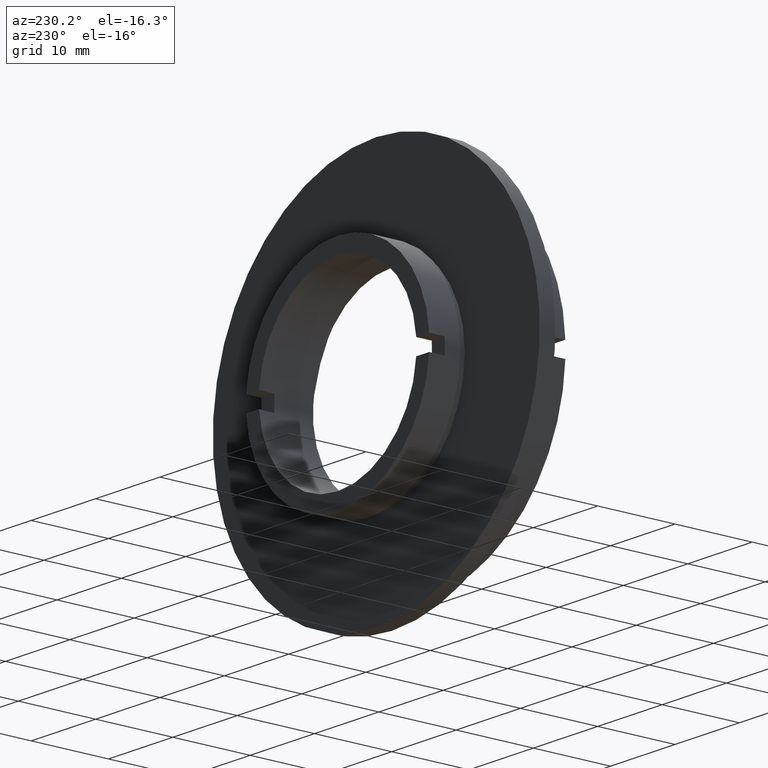
[diagram: clean part render]
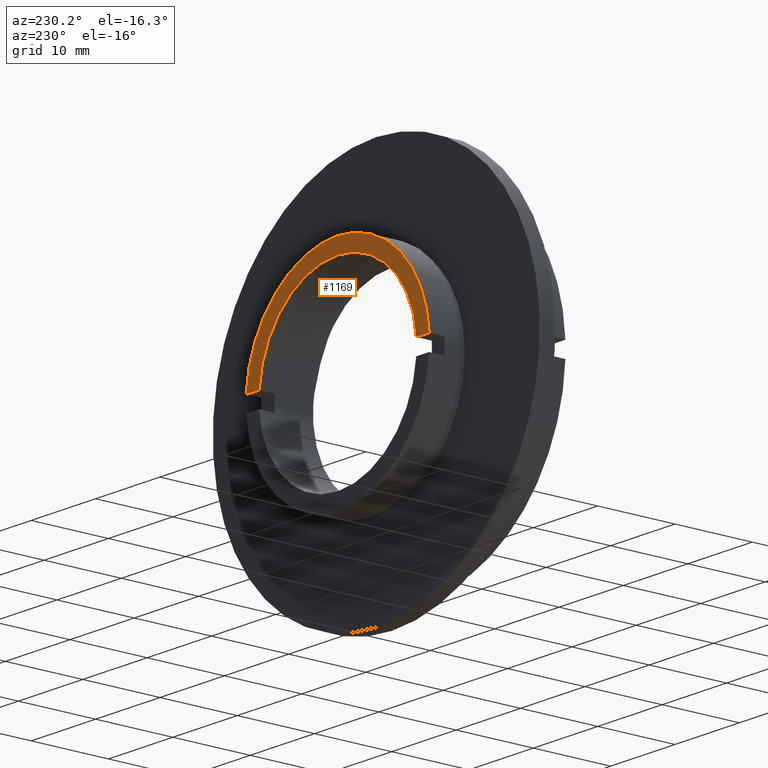
[diagram: same view with one face highlighted and labeled with its STEP entity id]
A machine part, auxiliary view. The second image highlights one B-rep face of the part: STEP entity #1169.
In plain terms, the highlighted planar face has unit normal (-0, 1, 0).
Its self-contained STEP definition (entity closure, byte-faithful):
#17 = EDGE_CURVE ( 'NONE', #1176, #213, #1238, .T. ) ;
#60 = VERTEX_POINT ( 'NONE', #689 ) ;
#90 = DIRECTION ( 'NONE',  ( -0.0000000000000000000, 1.000000000000000000, -0.0000000000000000000 ) ) ;
#113 = DIRECTION ( 'NONE',  ( 0.0000000000000000000, 0.0000000000000000000, 1.000000000000000000 ) ) ;
#118 = AXIS2_PLACEMENT_3D ( 'NONE', #519, #1134, #607 ) ;
#130 = CIRCLE ( 'NONE', #755, 12.24999999999999800 ) ;
#141 = AXIS2_PLACEMENT_3D ( 'NONE', #1140, #829, #1124 ) ;
#194 = VECTOR ( 'NONE', #1289, 1000.000000000000000 ) ;
#200 = VERTEX_POINT ( 'NONE', #278 ) ;
#213 = VERTEX_POINT ( 'NONE', #310 ) ;
#220 = ORIENTED_EDGE ( 'NONE', *, *, #443, .F. ) ;
#224 = EDGE_CURVE ( 'NONE', #200, #1009, #1125, .T. ) ;
#242 = CARTESIAN_POINT ( 'NONE',  ( 0.0000000000000000000, 12.00000000000000000, 0.0000000000000000000 ) ) ;
#278 = CARTESIAN_POINT ( 'NONE',  ( -12.20911544707477800, 12.00000000000000000, 1.000000000000001600 ) ) ;
#285 = CARTESIAN_POINT ( 'NONE',  ( 0.0000000000000000000, 12.00000000000000000, 12.24999999999999800 ) ) ;
#288 = DIRECTION ( 'NONE',  ( 1.000000000000000000, 0.0000000000000000000, 0.0000000000000000000 ) ) ;
#310 = CARTESIAN_POINT ( 'NONE',  ( 14.21486897582949800, 12.00000000000000000, 1.000000000000001600 ) ) ;
#324 = ORIENTED_EDGE ( 'NONE', *, *, #1278, .T. ) ;
#337 = EDGE_LOOP ( 'NONE', ( #957, #324, #385, #1116, #220, #850 ) ) ;
#385 = ORIENTED_EDGE ( 'NONE', *, *, #717, .T. ) ;
#443 = EDGE_CURVE ( 'NONE', #1009, #1176, #130, .T. ) ;
#486 = CARTESIAN_POINT ( 'NONE',  ( -12.24999999999999800, 12.00000000000000000, 1.000000000000001600 ) ) ;
#504 = DIRECTION ( 'NONE',  ( -0.0000000000000000000, 1.000000000000000000, -0.0000000000000000000 ) ) ;
#519 = CARTESIAN_POINT ( 'NONE',  ( -12.24999999999999800, 12.00000000000000000, 0.0000000000000000000 ) ) ;
#557 = LINE ( 'NONE', #486, #961 ) ;
#558 = DIRECTION ( 'NONE',  ( 0.0000000000000000000, 0.0000000000000000000, 1.000000000000000000 ) ) ;
#590 = AXIS2_PLACEMENT_3D ( 'NONE', #242, #504, #113 ) ;
#605 = CARTESIAN_POINT ( 'NONE',  ( 0.0000000000000000000, 12.00000000000000000, 0.0000000000000000000 ) ) ;
#607 = DIRECTION ( 'NONE',  ( 0.0000000000000000000, 0.0000000000000000000, 1.000000000000000000 ) ) ;
#653 = AXIS2_PLACEMENT_3D ( 'NONE', #1336, #1265, #558 ) ;
#660 = FACE_OUTER_BOUND ( 'NONE', #337, .T. ) ;
#689 = CARTESIAN_POINT ( 'NONE',  ( 0.0000000000000000000, 12.00000000000000000, 14.24999999999999800 ) ) ;
#711 = PLANE ( 'NONE',  #118 ) ;
#717 = EDGE_CURVE ( 'NONE', #60, #213, #1338, .T. ) ;
#733 = VERTEX_POINT ( 'NONE', #1118 ) ;
#734 = CARTESIAN_POINT ( 'NONE',  ( 12.20911544707477800, 12.00000000000000000, 1.000000000000001600 ) ) ;
#755 = AXIS2_PLACEMENT_3D ( 'NONE', #605, #90, #1323 ) ;
#773 = CARTESIAN_POINT ( 'NONE',  ( -12.24999999999999800, 12.00000000000000000, 1.000000000000001600 ) ) ;
#829 = DIRECTION ( 'NONE',  ( -0.0000000000000000000, 1.000000000000000000, -0.0000000000000000000 ) ) ;
#850 = ORIENTED_EDGE ( 'NONE', *, *, #224, .F. ) ;
#930 = EDGE_CURVE ( 'NONE', #733, #200, #557, .T. ) ;
#957 = ORIENTED_EDGE ( 'NONE', *, *, #930, .F. ) ;
#961 = VECTOR ( 'NONE', #288, 1000.000000000000000 ) ;
#965 = CIRCLE ( 'NONE', #653, 14.24999999999999800 ) ;
#1009 = VERTEX_POINT ( 'NONE', #285 ) ;
#1116 = ORIENTED_EDGE ( 'NONE', *, *, #17, .F. ) ;
#1118 = CARTESIAN_POINT ( 'NONE',  ( -14.21486897582949800, 12.00000000000000000, 1.000000000000001600 ) ) ;
#1124 = DIRECTION ( 'NONE',  ( 0.0000000000000000000, 0.0000000000000000000, 1.000000000000000000 ) ) ;
#1125 = CIRCLE ( 'NONE', #141, 12.24999999999999800 ) ;
#1134 = DIRECTION ( 'NONE',  ( -0.0000000000000000000, 1.000000000000000000, 0.0000000000000000000 ) ) ;
#1140 = CARTESIAN_POINT ( 'NONE',  ( 0.0000000000000000000, 12.00000000000000000, 0.0000000000000000000 ) ) ;
#1169 = ADVANCED_FACE ( 'NONE', ( #660 ), #711, .T. ) ;
#1176 = VERTEX_POINT ( 'NONE', #734 ) ;
#1238 = LINE ( 'NONE', #773, #194 ) ;
#1265 = DIRECTION ( 'NONE',  ( -0.0000000000000000000, 1.000000000000000000, -0.0000000000000000000 ) ) ;
#1278 = EDGE_CURVE ( 'NONE', #733, #60, #965, .T. ) ;
#1289 = DIRECTION ( 'NONE',  ( 1.000000000000000000, 0.0000000000000000000, 0.0000000000000000000 ) ) ;
#1323 = DIRECTION ( 'NONE',  ( 0.0000000000000000000, 0.0000000000000000000, 1.000000000000000000 ) ) ;
#1336 = CARTESIAN_POINT ( 'NONE',  ( 0.0000000000000000000, 12.00000000000000000, 0.0000000000000000000 ) ) ;
#1338 = CIRCLE ( 'NONE', #590, 14.24999999999999800 ) ;